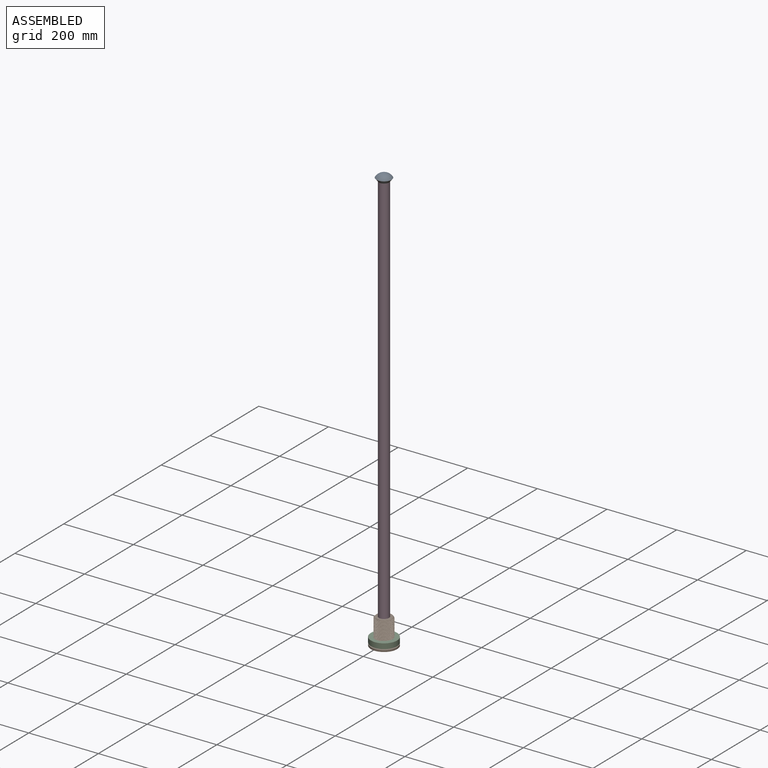
[diagram: assembled view]
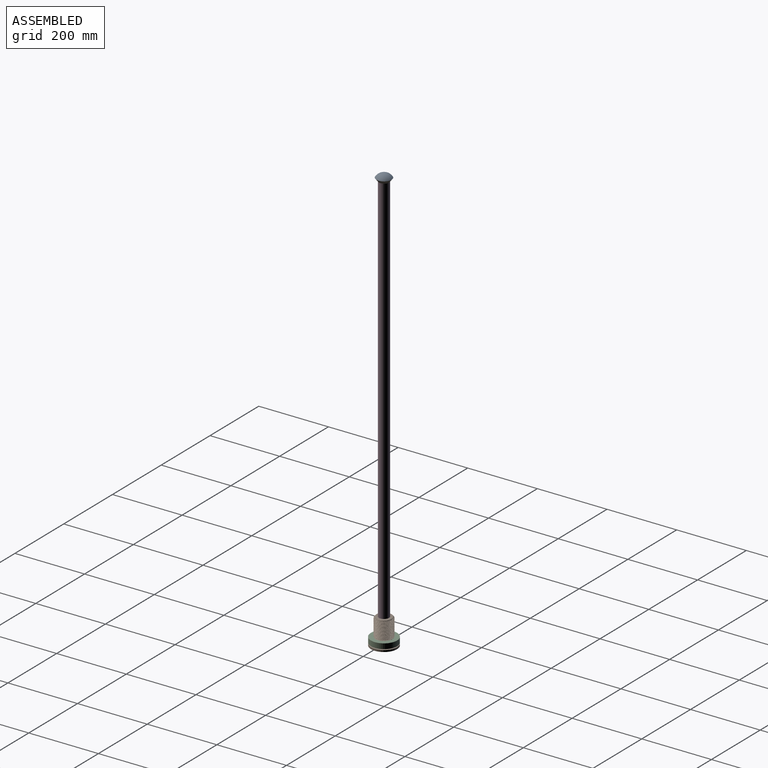
[diagram: assembled view, second angle]
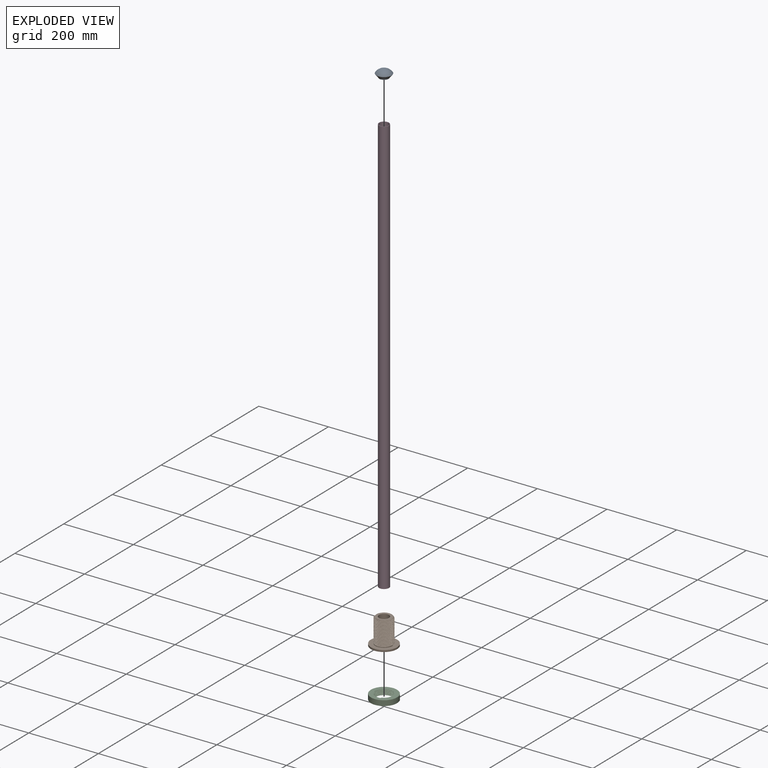
[diagram: exploded view]
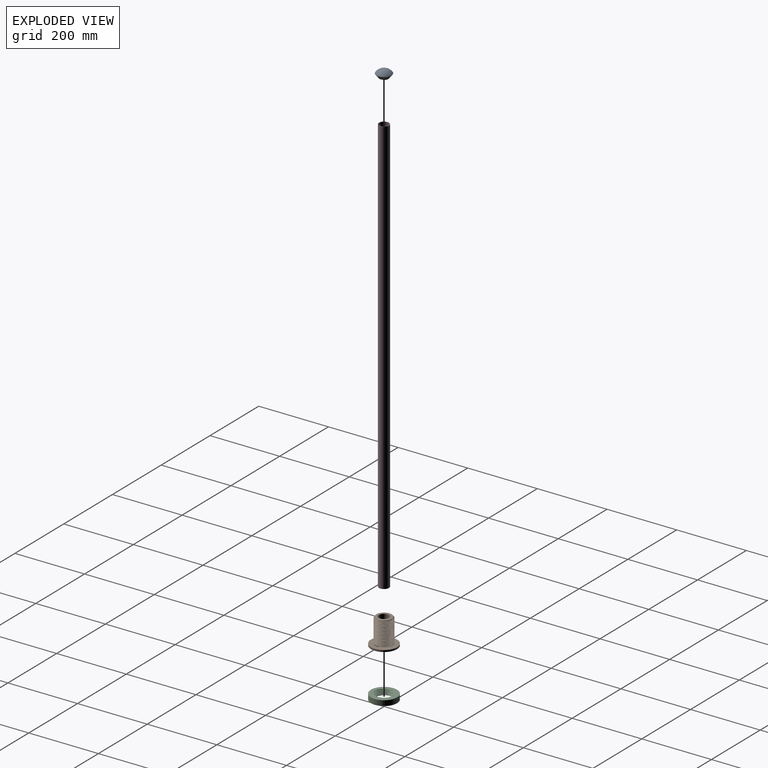
[diagram: exploded view, second angle]
ASSEMBLY  parts=4 mates=3
PART A: 5 faces, bbox 43.7x43.7x22.9 mm
  f0: plane 27x27mm, normal (0,0,-1), area 572.6mm2, adj f4
  f1: torus R=0.57mm, axis (0,0,1), area 1952.9mm2, adj f2
  f2: cone r=14.5mm half-angle=39.1deg, axis (0,0,1), area 1326.8mm2, adj f1,f3
  f3: plane 29x29mm, normal (0,0,-1), area 88mm2, adj f2,f4
  f4: cylinder r=13.5mm len=27mm, axis (0,0,1), area 169.6mm2, adj f0,f3
PART B: 14 faces, bbox 75x75x76 mm
  f0: plane 43.5x43.5mm, normal (0,0,1), area 825.6mm2, adj f6,f12
  f1: cylinder r=24.75mm len=67mm, axis (0,0,1), area -861.5mm2, adj f2,f8,f9,f10,f12,f13
  f2: plane 75.04x75.04mm, normal (0,0,1), area 2489mm2, adj f1,f3,f9,f10,f11
  f3: cylinder r=37.5mm len=75mm, axis (0,0,1), area 1178.1mm2, adj f2,f4
  f4: plane 75x75mm, normal (0,0,-1), area 4417.9mm2, adj f3
  f5: plane 29x29mm, normal (0,0,1), area 660.5mm2, adj f6
  f6: cylinder r=14.5mm len=70mm, axis (0,0,1), area 6377.4mm2, adj f0,f5
  f7: cylinder r=22.03mm len=69.12mm, axis (0,0,-1), area 1326mm2, adj f8,f9,f10,f12
  f8: bspline ~69.99x57.58mm, area 9340.5mm2, adj f1,f7,f10,f12
  f9: bspline ~71.1x57.58mm, area 9730.3mm2, adj f1,f2,f7,f10,f11,f12,f13
  f10: plane 2.91x2.89mm, normal (0,1,0), area 5.1mm2, adj f1,f2,f7,f8,f9,f11
  f11: cylinder r=24.93mm len=21.56mm, axis (0,0,-1), area 6.5mm2, adj f2,f9,f10
  f12: cone r=21.75mm half-angle=45deg, axis (0,0,-1), area 268.1mm2, adj f0,f1,f7,f8,f9,f13
  f13: cone r=21.75mm half-angle=45deg, axis (0,0,-1), area 0.3mm2, adj f1,f9,f12
PART C: 9 faces, bbox 76.3x76.3x19.2 mm
  f0: cylinder r=23.5mm len=47mm, axis (0,0,-1), area 324.4mm2, adj f1,f3,f4,f5,f7,f8
  f1: plane 76.3x76.3mm, normal (0,0,1), area 2562.6mm2, adj f0,f2,f4,f6,f7
  f2: cylinder r=37.5mm len=75mm, axis (0,0,-1), area 3534.3mm2, adj f1,f3
  f3: plane 76.15x76.15mm, normal (0,0,-1), area 2572.7mm2, adj f0,f2,f5,f6,f8
  f4: bspline ~60.11x52.05mm, area 1972.1mm2, adj f0,f1,f6,f8
  f5: bspline ~60.11x52.05mm, area 1959.7mm2, adj f0,f3,f6,f7
  f6: cylinder r=26.03mm len=52.05mm, axis (0,0,-1), area 706.6mm2, adj f1,f3,f4,f5,f7,f8
  f7: plane 2.53x1.28mm, normal (0,-1,0), area 2.1mm2, adj f0,f1,f5,f6
  f8: plane 2.53x1.4mm, normal (0,1,0), area 2.3mm2, adj f0,f3,f4,f6
PART D: 4 faces, bbox 29x29x1200 mm
  f0: cylinder r=13.5mm len=1200mm, axis (0,0,-1), area 101787.6mm2, adj f2,f3
  f1: cylinder r=14.5mm len=1200mm, axis (0,0,-1), area 109327.4mm2, adj f2,f3
  f2: plane 29x29mm, normal (0,0,1), area 88mm2, adj f0,f1
  f3: plane 29x29mm, normal (0,0,-1), area 88mm2, adj f0,f1
PLACE A t=(0,0,1198)mm
PLACE B t=(0,0,-5)mm
PLACE C rot(axis=(0,0,-1),71.7deg) t=(0,0,2.5)mm
PLACE D at identity
MATE fastened A.f2 <-> D.f0  axis (0,0,-1) through (0,0,1200)mm
MATE fastened D.f1 <-> B.f7  axis (0,0,-1) through (0,0,0)mm
MATE cylindrical C.f2 <-> B.f1  axis (0,0,-1) through (0,0,10)mm
